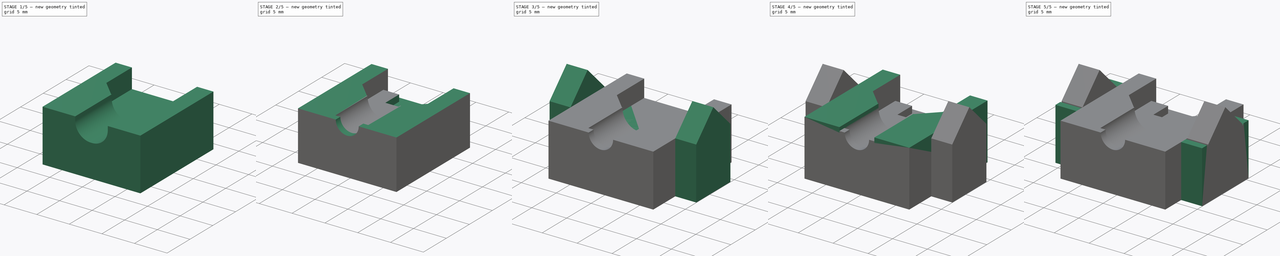
[diagram: build sequence overview — one tinted view per stage of 5, left to right]
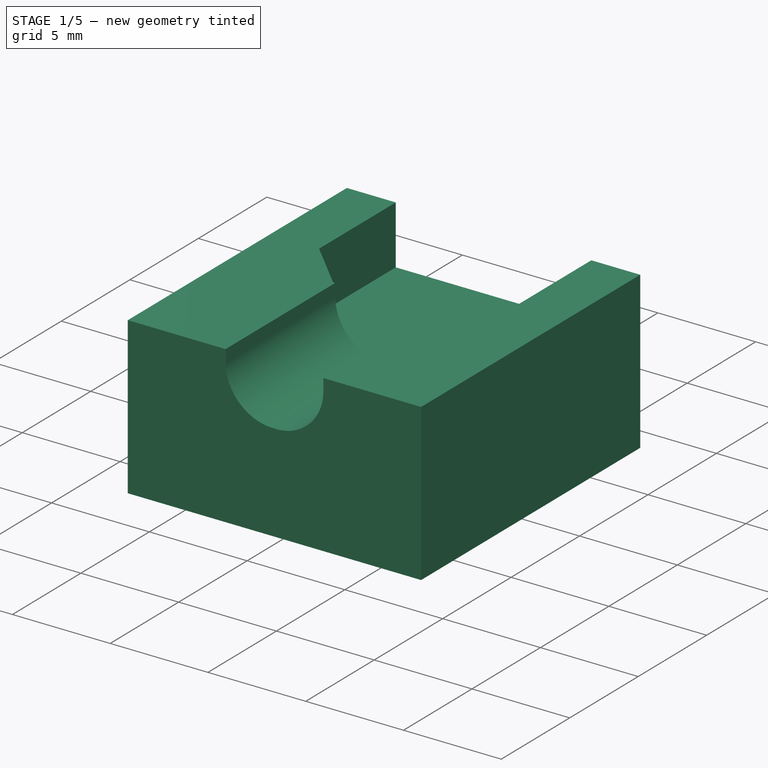
[diagram: stage 1 of 5 — iso view after this stage's code; geometry added in this stage tinted green]
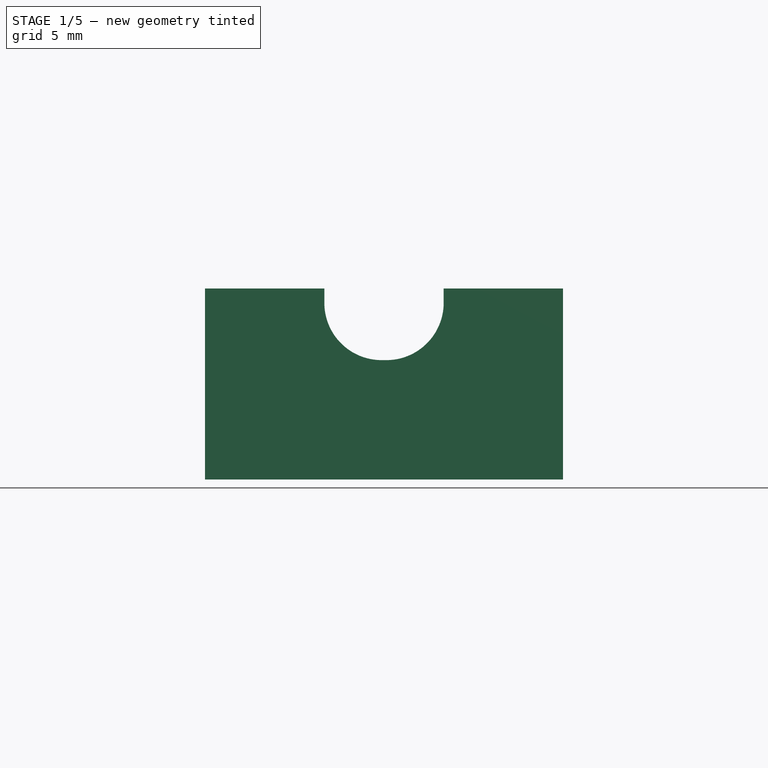
[diagram: stage 1 of 5 — front view after this stage's code; geometry added in this stage tinted green]
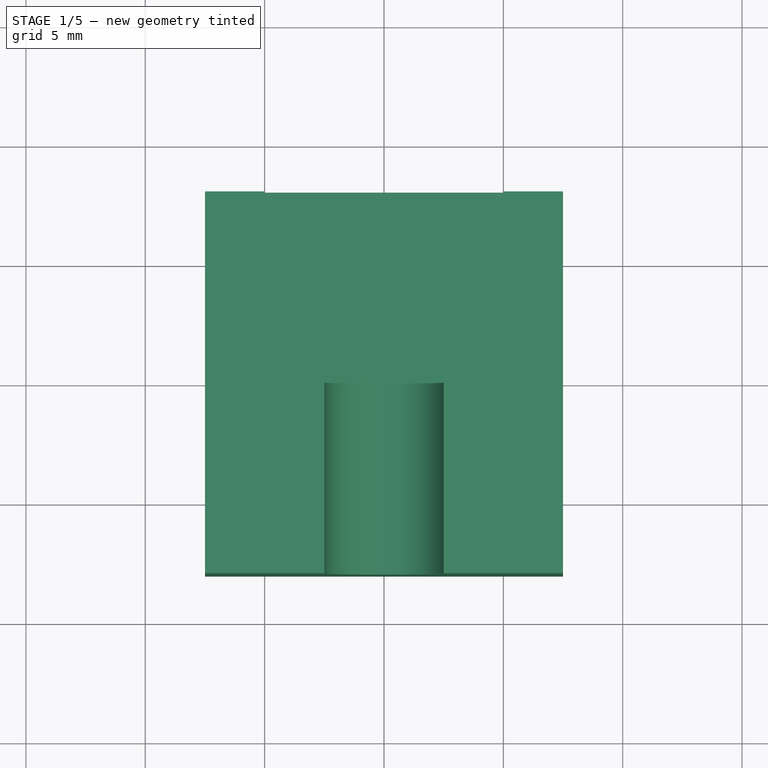
[diagram: stage 1 of 5 — top view after this stage's code; geometry added in this stage tinted green]
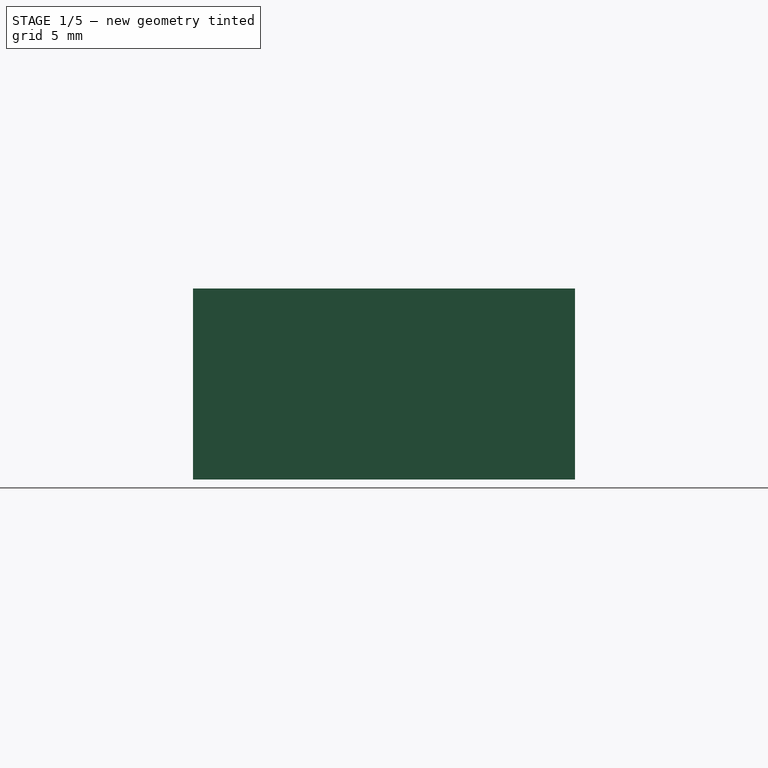
[diagram: stage 1 of 5 — right view after this stage's code; geometry added in this stage tinted green]
FCSTD DOCUMENT  (FreeCAD 1.0R39109 (Git))
Label: jst_gjutform
License: All rights reserved
LicenseURL: https://en.wikipedia.org/wiki/All_rights_reserved
objects: Sketcher::SketchObject×13, PartDesign::Pad×12, PartDesign::Pocket×4, PartDesign::Chamfer×2, PartDesign::Fillet×2, PartDesign::Body×2
note: 88 computed .brp shape members not serialized (recipe doc carries the construction recipe); baked Part::Feature solids carry a one-line shape summary decoded from their .brp

FEATURE [Sketcher::SketchObject] Sketch004
  ArcFitTolerance = 1e-06
  AttachmentSupport = -> [XY_Plane001]
  FullyConstrained = true
  MakeInternals = false
  MapMode = 5
  sketch-geometry (5):
    g0: LineSegment StartX=-7.5 StartY=-8 StartZ=0 EndX=7.5 EndY=-8 EndZ=0
    g1: LineSegment StartX=7.5 StartY=-8 StartZ=0 EndX=7.5 EndY=8 EndZ=0
    g2: LineSegment StartX=7.5 StartY=8 StartZ=0 EndX=-7.5 EndY=8 EndZ=0
    g3: LineSegment StartX=-7.5 StartY=8 StartZ=0 EndX=-7.5 EndY=-8 EndZ=0
    g4: GeomPoint [constr] X=0 Y=0 Z=0
  constraints (12):
    c: Coincident(g0,g1)
    c: Coincident(g1,g2)
    c: Coincident(g2,g3)
    c: Coincident(g3,g0)
    c: Horizontal(g0)
    c: Horizontal(g2)
    c: Vertical(g1)
    c: Vertical(g3)
    c: Symmetric(g2,g0,g4)
    c: Distance(g1,g3) = 15
    c: Distance(g0,g2) = 16
    c: Coincident(g4,g-1)
FEATURE [PartDesign::Pad] Pad003
  Direction = (0,0,1)
  Length = 5
  Length2 = 10
  Profile = -> Sketch004
  ReferenceAxis = -> Sketch004 [N_Axis]
  Refine = true
  Reversed = true
  Suppressed = false
  Type = 0
FEATURE [Sketcher::SketchObject] Sketch005
  ArcFitTolerance = 1e-06
  AttachmentSupport = -> [Pad003]
  FullyConstrained = true
  MakeInternals = false
  MapMode = 5
  sketch-geometry (13):
    g0: LineSegment StartX=-7.5 StartY=-8 StartZ=0 EndX=-2.5 EndY=-8 EndZ=0
    g1: LineSegment StartX=7.5 StartY=-8 StartZ=0 EndX=7.5 EndY=8 EndZ=0
    g2: LineSegment StartX=7.5 StartY=8 StartZ=0 EndX=5 EndY=8 EndZ=0
    g3: LineSegment StartX=-7.5 StartY=8 StartZ=0 EndX=-7.5 EndY=-8 EndZ=0
    g4: GeomPoint [constr] X=0 Y=0 Z=0
    g5: LineSegment StartX=-5 StartY=8 StartZ=0 EndX=-5 EndY=0 EndZ=0
    g6: LineSegment StartX=-5 StartY=0 StartZ=0 EndX=-2.5 EndY=0 EndZ=0
    g7: LineSegment StartX=5 StartY=0 StartZ=0 EndX=5 EndY=8 EndZ=0
    g8: LineSegment StartX=-5 StartY=8 StartZ=0 EndX=-7.5 EndY=8 EndZ=0
    g9: LineSegment StartX=-2.5 StartY=0 StartZ=0 EndX=-2.5 EndY=-8 EndZ=0
    g10: LineSegment StartX=2.5 StartY=-8 StartZ=0 EndX=2.5 EndY=0 EndZ=0
    g11: LineSegment StartX=2.5 StartY=0 StartZ=0 EndX=5 EndY=0 EndZ=0
    g12: LineSegment StartX=2.5 StartY=-8 StartZ=0 EndX=7.5 EndY=-8 EndZ=0
  constraints (38):
    c: Coincident(g12,g1)
    c: Coincident(g1,g2)
    c: Coincident(g8,g3)
    c: Coincident(g3,g0)
    c: Horizontal(g0)
    c: Horizontal(g2)
    c: Vertical(g1)
    c: Vertical(g3)
    c: Symmetric(g2,g0,g4)
    c: Distance(g1,g3) = 15
    c: Distance(g0,g8) = 16
    c: Coincident(g4,g-1)
    c: Coincident(g5,g6)
    c: Coincident(g11,g7)
    c: Vertical(g5)
    c: Vertical(g7)
    c: Horizontal(g6)
    c: Distance(g5,g7) = 10
    c: Distance(g6,g5) = 8
    c: PointOnObject(g5,g8)
    c: PointOnObject(g8,g5)
    c: DistanceX(g8,g8) = 2.5
    c: DistanceY(g-1,g3) = 8
    c: Horizontal(g8)
    c: Coincident(g7,g2)
    c: Vertical(g9)
    c: Vertical(g10)
    c: Distance(g9,g10) = 5
    c: Distance(g9,g9) = 8
    c: DistanceX(g9,g-1) = 2.5
    c: Coincident(g6,g9)
    c: PointOnObject(g0,g9)
    c: Horizontal(g11)
    c: Coincident(g10,g11)
    c: PointOnObject(g7,g-1)
    c: Coincident(g10,g12)
    c: Horizontal(g12)
    c: DistanceY(g1,g-1) = 8
FEATURE [PartDesign::Pad] Pad004
  BaseFeature = -> Pad003
  Direction = (0,0,1)
  Length = 3
  Length2 = 10
  Profile = -> Sketch005
  ReferenceAxis = -> Sketch005 [N_Axis]
  Refine = true
  Suppressed = false
  Type = 0
FEATURE [PartDesign::Chamfer] Chamfer001
  Angle = 45
  Base = -> Pad004 [Edge27,Edge25]
  BaseFeature = -> Pad004
  ChamferType = 0
  FlipDirection = false
  Refine = true
  Size = 2.4
  Size2 = 1
  SupportTransform = false
  Suppressed = false
  UseAllEdges = false
FEATURE [PartDesign::Fillet] Fillet001
  Base = -> Chamfer001 [Edge7,Edge3]
  BaseFeature = -> Chamfer001
  Radius = 2.4
  Refine = true
  SupportTransform = false
  Suppressed = false
  UseAllEdges = false
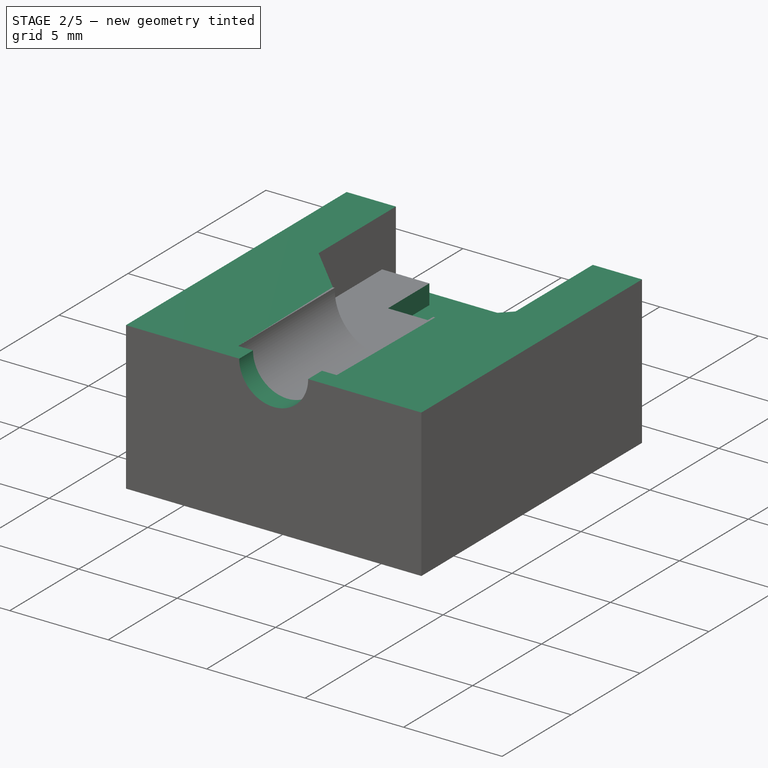
[diagram: stage 2 of 5 — iso view after this stage's code; geometry added in this stage tinted green]
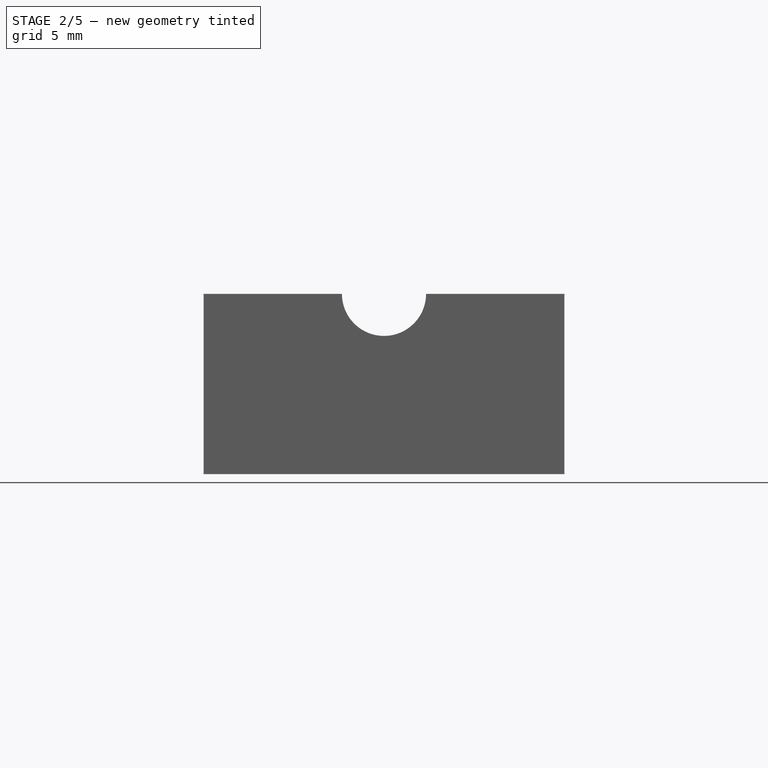
[diagram: stage 2 of 5 — front view after this stage's code; geometry added in this stage tinted green]
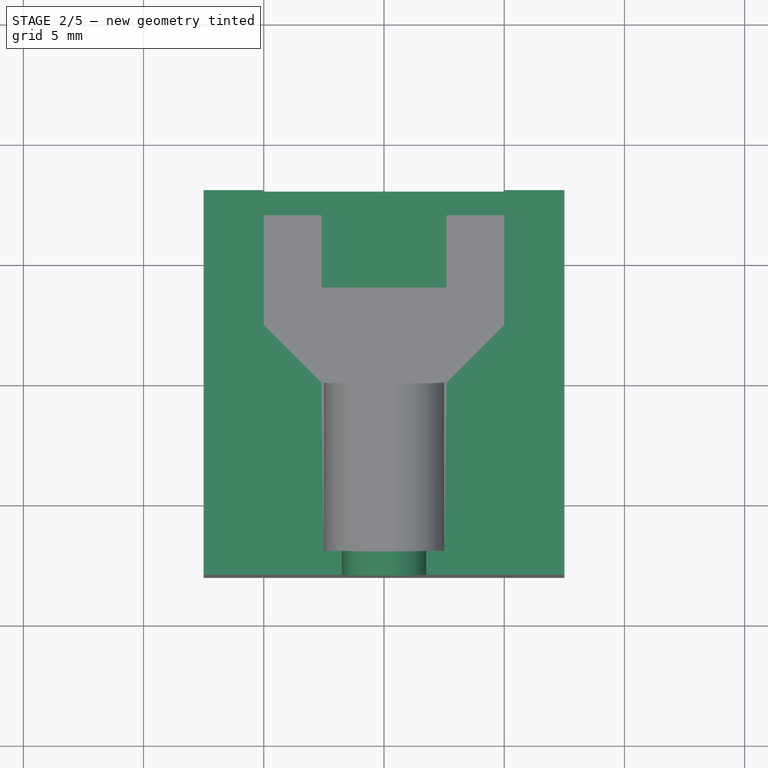
[diagram: stage 2 of 5 — top view after this stage's code; geometry added in this stage tinted green]
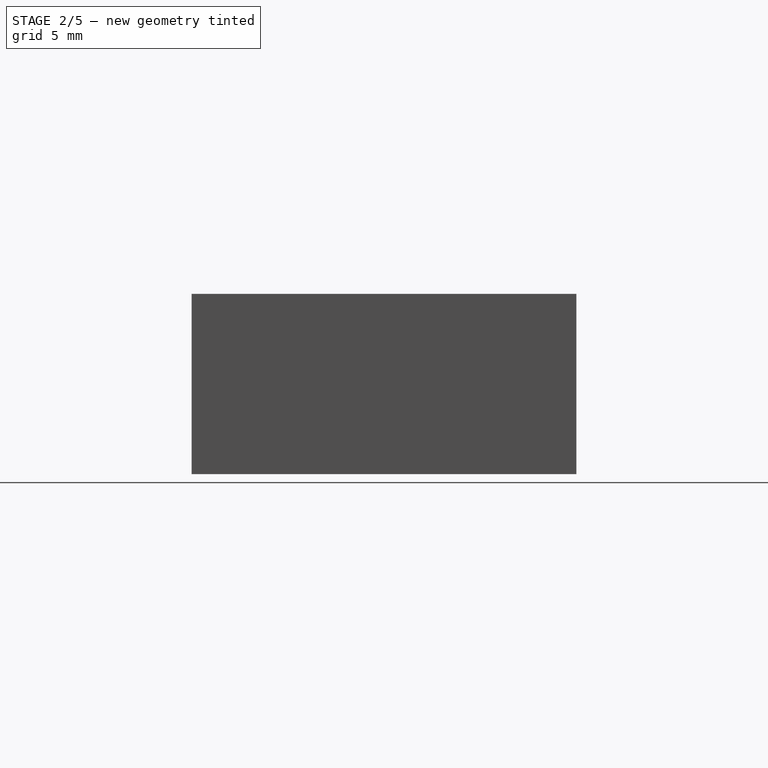
[diagram: stage 2 of 5 — right view after this stage's code; geometry added in this stage tinted green]
FEATURE [Sketcher::SketchObject] Sketch006
  ArcFitTolerance = 1e-06
  AttachmentSupport = -> [Fillet001]
  FullyConstrained = true
  MakeInternals = false
  MapMode = 5
  sketch-geometry (5):
    g0: LineSegment StartX=-5 StartY=4 StartZ=0 EndX=5 EndY=4 EndZ=0
    g1: LineSegment StartX=5 StartY=4 StartZ=0 EndX=5 EndY=8 EndZ=0
    g2: LineSegment StartX=5 StartY=8 StartZ=0 EndX=-5 EndY=8 EndZ=0
    g3: LineSegment StartX=-5 StartY=8 StartZ=0 EndX=-5 EndY=4 EndZ=0
    g4: GeomPoint [constr] X=0 Y=6 Z=0
  constraints (13):
    c: Coincident(g0,g1)
    c: Coincident(g1,g2)
    c: Coincident(g2,g3)
    c: Coincident(g3,g0)
    c: Horizontal(g0)
    c: Horizontal(g2)
    c: Vertical(g1)
    c: Vertical(g3)
    c: Symmetric(g2,g0,g4)
    c: Distance(g1,g3) = 10
    c: Distance(g0,g2) = 4
    c: PointOnObject(g4,g-2)
    c: DistanceY(g-1,g2) = 8
FEATURE [PartDesign::Pocket] Pocket003
  BaseFeature = -> Fillet001
  Direction = (0,0,-1)
  Length = 1
  Length2 = 5
  Profile = -> Sketch006
  ReferenceAxis = -> Sketch006 [N_Axis]
  Refine = true
  Suppressed = false
  Type = 0
FEATURE [PartDesign::Pocket] Pocket004
  BaseFeature = -> Pocket003
  Direction = (0,0,-1)
  Length = 0.5
  Length2 = 5
  Profile = -> Pocket003 [Face11,Face14]
  Refine = true
  Suppressed = false
  Type = 0
FEATURE [Sketcher::SketchObject] Sketch007
  ArcFitTolerance = 1e-06
  AttachmentSupport = -> [Pocket004]
  FullyConstrained = true
  MakeInternals = false
  MapMode = 5
  Placement = pos=(0,-8,0) rot=(1,0,0;1.5708rad)
  sketch-geometry (7):
    g0: ArcOfCircle CenterX=0 CenterY=2.5 CenterZ=0 NormalX=0 NormalY=0 NormalZ=1 AngleXU=0 Radius=1.75 StartAngle=3.14159 EndAngle=6.28319
    g1: LineSegment StartX=-2.5 StartY=-0.5 StartZ=0 EndX=2.5 EndY=-0.5 EndZ=0
    g2: LineSegment StartX=2.5 StartY=-0.5 StartZ=0 EndX=2.5 EndY=2.5 EndZ=0
    g3: LineSegment StartX=2.5 StartY=2.5 StartZ=0 EndX=1.75 EndY=2.5 EndZ=0
    g4: LineSegment StartX=-2.5 StartY=2.5 StartZ=0 EndX=-2.5 EndY=-0.5 EndZ=0
    g5: GeomPoint [constr] X=0 Y=1 Z=0
    g6: LineSegment StartX=-1.75 StartY=2.5 StartZ=0 EndX=-2.5 EndY=2.5 EndZ=0
  constraints (21):
    c: Diameter(g0) = 3.5
    c: PointOnObject(g0,g-2)
    c: Coincident(g1,g2)
    c: Coincident(g2,g3)
    c: Coincident(g6,g4)
    c: Coincident(g4,g1)
    c: Horizontal(g1)
    c: Horizontal(g3)
    c: Vertical(g2)
    c: Vertical(g4)
    c: Symmetric(g3,g1,g5)
    c: Distance(g2,g4) = 5
    c: Distance(g1,g6) = 3
    c: PointOnObject(g5,g-2)
    c: DistanceY(g-1,g6) = 2.5
    c: DistanceY(g-1,g0) = 2.5
    c: PointOnObject(g0,g6)
    c: Coincident(g3,g0)
    c: PointOnObject(g6,g0)
    c: Angle(g0) = 3.14159
    c: DistanceY(g-1,g0) = 2.5
FEATURE [PartDesign::Pad] Pad005
  BaseFeature = -> Pocket004
  Direction = (0,-1,2e-16)
  Length = 1
  Length2 = 10
  Profile = -> Sketch007
  ReferenceAxis = -> Sketch007 [N_Axis]
  Refine = true
  Reversed = true
  Suppressed = false
  Type = 0
FEATURE [Sketcher::SketchObject] Sketch008
  ArcFitTolerance = 1e-06
  AttachmentSupport = -> [Pad005]
  FullyConstrained = true
  MakeInternals = false
  MapMode = 5
  Placement = pos=(0,4,0) rot=(0,0.707107,0.707107;3.14159rad)
  sketch-geometry (8):
    g0: LineSegment StartX=-2.6 StartY=0 StartZ=0 EndX=-5 EndY=0 EndZ=0
    g1: LineSegment StartX=-5 StartY=0 StartZ=0 EndX=-5 EndY=-1 EndZ=0
    g2: LineSegment StartX=-5 StartY=-1 StartZ=0 EndX=-2.6 EndY=-1 EndZ=0
    g3: LineSegment StartX=-2.6 StartY=-1 StartZ=0 EndX=-2.6 EndY=0 EndZ=0
    g4: LineSegment StartX=2.6 StartY=0 StartZ=0 EndX=2.6 EndY=-1 EndZ=0
    g5: LineSegment StartX=2.6 StartY=-1 StartZ=0 EndX=5 EndY=-1 EndZ=0
    g6: LineSegment StartX=5 StartY=-1 StartZ=0 EndX=5 EndY=0 EndZ=0
    g7: LineSegment StartX=5 StartY=0 StartZ=0 EndX=2.6 EndY=0 EndZ=0
  constraints (24):
    c: Coincident(g0,g1)
    c: Coincident(g1,g2)
    c: Coincident(g2,g3)
    c: Coincident(g3,g0)
    c: Horizontal(g0)
    c: Horizontal(g2)
    c: Vertical(g1)
    c: Vertical(g3)
    c: PointOnObject(g0,g-1)
    c: Coincident(g4,g5)
    c: Coincident(g5,g6)
    c: Coincident(g6,g7)
    c: Coincident(g7,g4)
    c: Vertical(g4)
    c: Vertical(g6)
    c: Horizontal(g5)
    c: Horizontal(g7)
    c: PointOnObject(g4,g-1)
    c: DistanceX(g0,g-1) = 2.6
    c: DistanceX(g-1,g4) = 2.6
    c: DistanceX(g0,g-1) = 5
    c: DistanceX(g-1,g6) = 5
    c: DistanceY(g4,g-1) = 1
    c: DistanceY(g2,g-1) = 1
FEATURE [PartDesign::Pad] Pad006
  BaseFeature = -> Pad005
  Direction = (0,1,-2e-16)
  Length = 3
  Length2 = 10
  Profile = -> Sketch008
  ReferenceAxis = -> Sketch008 [N_Axis]
  Refine = true
  Suppressed = false
  Type = 0
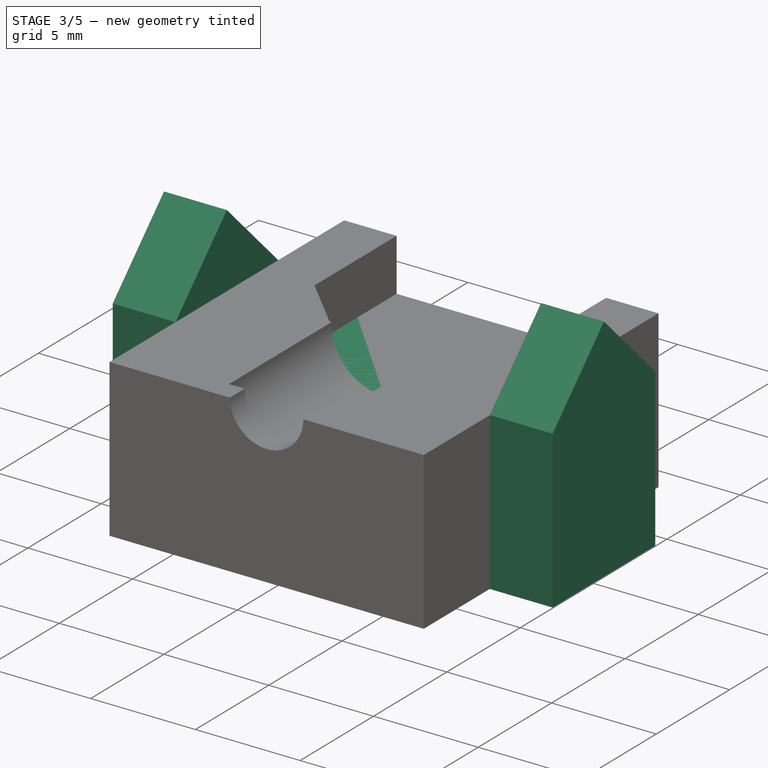
[diagram: stage 3 of 5 — iso view after this stage's code; geometry added in this stage tinted green]
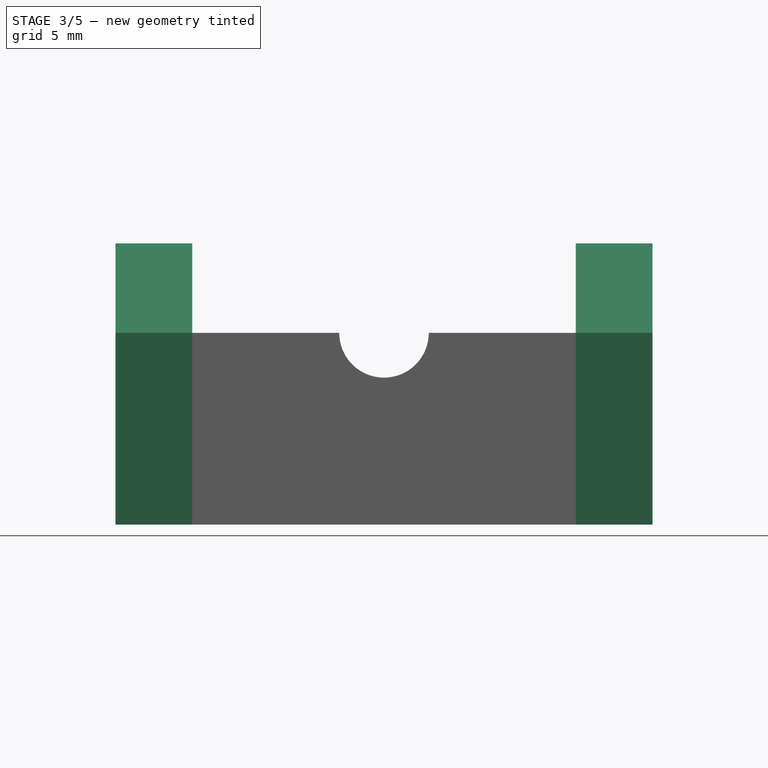
[diagram: stage 3 of 5 — front view after this stage's code; geometry added in this stage tinted green]
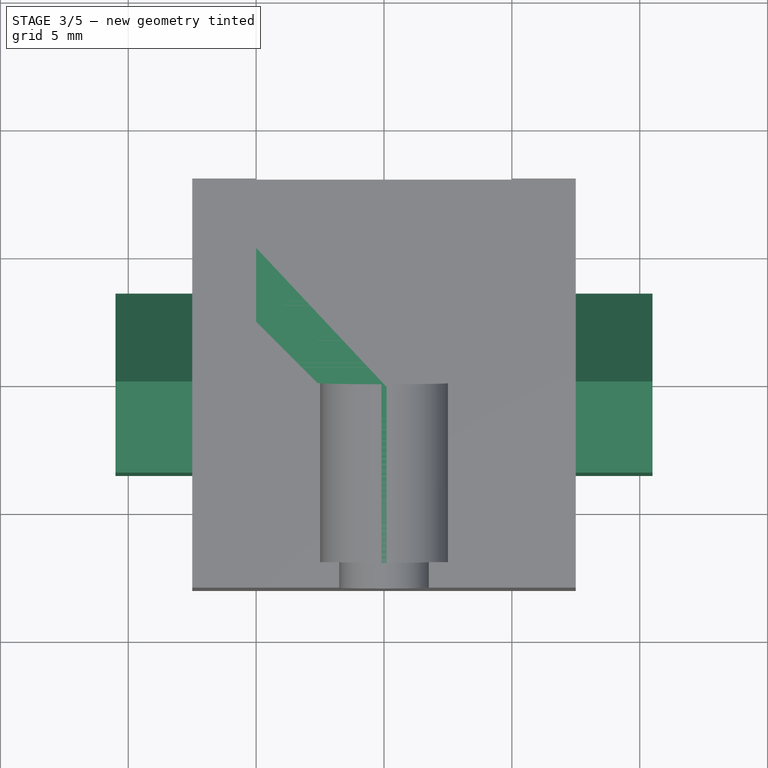
[diagram: stage 3 of 5 — top view after this stage's code; geometry added in this stage tinted green]
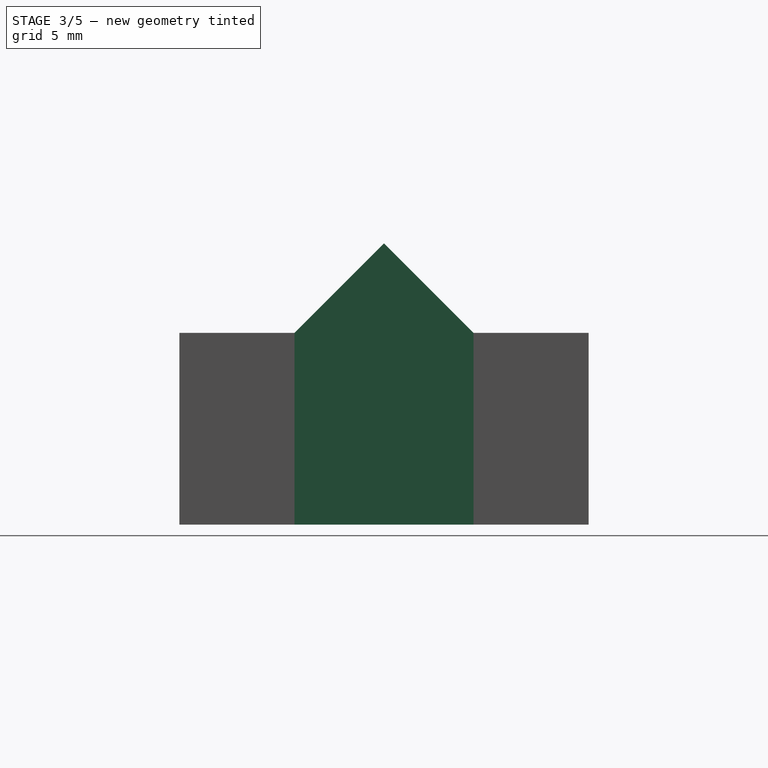
[diagram: stage 3 of 5 — right view after this stage's code; geometry added in this stage tinted green]
FEATURE [Sketcher::SketchObject] Sketch
  ArcFitTolerance = 1e-06
  AttachmentSupport = -> [XY_Plane]
  FullyConstrained = true
  MakeInternals = false
  MapMode = 5
  sketch-geometry (5):
    g0: LineSegment StartX=-7.5 StartY=-8 StartZ=0 EndX=7.5 EndY=-8 EndZ=0
    g1: LineSegment StartX=7.5 StartY=-8 StartZ=0 EndX=7.5 EndY=8 EndZ=0
    g2: LineSegment StartX=7.5 StartY=8 StartZ=0 EndX=-7.5 EndY=8 EndZ=0
    g3: LineSegment StartX=-7.5 StartY=8 StartZ=0 EndX=-7.5 EndY=-8 EndZ=0
    g4: GeomPoint [constr] X=0 Y=0 Z=0
  constraints (12):
    c: Coincident(g0,g1)
    c: Coincident(g1,g2)
    c: Coincident(g2,g3)
    c: Coincident(g3,g0)
    c: Horizontal(g0)
    c: Horizontal(g2)
    c: Vertical(g1)
    c: Vertical(g3)
    c: Symmetric(g2,g0,g4)
    c: Distance(g1,g3) = 15
    c: Distance(g0,g2) = 16
    c: Coincident(g4,g-1)
FEATURE [PartDesign::Pad] Pad
  Direction = (0,0,1)
  Length = 5
  Length2 = 10
  Profile = -> Sketch
  ReferenceAxis = -> Sketch [N_Axis]
  Refine = true
  Reversed = true
  Suppressed = false
  Type = 0
FEATURE [Sketcher::SketchObject] Sketch009
  ArcFitTolerance = 1e-06
  AttachmentSupport = -> [Pad006]
  FullyConstrained = true
  MakeInternals = false
  MapMode = 5
  Placement = pos=(7.5,0,0) rot=(0.57735,0.57735,0.57735;2.0944rad)
  sketch-geometry (5):
    g0: LineSegment StartX=-3.5 StartY=2.5 StartZ=0 EndX=4e-16 EndY=6 EndZ=0
    g1: LineSegment StartX=4e-16 StartY=6 StartZ=0 EndX=3.5 EndY=2.5 EndZ=0
    g2: LineSegment StartX=3.5 StartY=2.5 StartZ=0 EndX=3.5 EndY=0 EndZ=0
    g3: LineSegment StartX=3.5 StartY=0 StartZ=0 EndX=-3.5 EndY=0 EndZ=0
    g4: LineSegment StartX=-3.5 StartY=0 StartZ=0 EndX=-3.5 EndY=2.5 EndZ=0
  constraints (15):
    c: PointOnObject(g0,g-2)
    c: Coincident(g1,g0)
    c: Coincident(g2,g1)
    c: PointOnObject(g2,g-1)
    c: Vertical(g2)
    c: Coincident(g3,g2)
    c: PointOnObject(g3,g-1)
    c: Coincident(g4,g3)
    c: Coincident(g4,g0)
    c: Vertical(g4)
    c: Angle(g0,g-2) = 0.785398
    c: Angle(g-2,g1) = 0.785398
    c: DistanceY(g-1,g0) = 2.5
    c: DistanceX(g3,g3) = 7
    c: DistanceX(g-1,g2) = 3.5
FEATURE [PartDesign::Pad] Pad007
  BaseFeature = -> Pad006
  Direction = (1,0,0)
  Length = 3
  Length2 = 10
  Profile = -> Sketch009
  ReferenceAxis = -> Sketch009 [N_Axis]
  Refine = true
  Suppressed = false
  Type = 0
FEATURE [Sketcher::SketchObject] Sketch010
  ArcFitTolerance = 1e-06
  AttachmentSupport = -> [Pad007]
  FullyConstrained = true
  MakeInternals = false
  MapMode = 5
  Placement = pos=(-7.5,0,0) rot=(0.57735,-0.57735,-0.57735;2.0944rad)
  sketch-geometry (5):
    g0: LineSegment StartX=-3.5 StartY=2.5 StartZ=0 EndX=0 EndY=6 EndZ=0
    g1: LineSegment StartX=0 StartY=6 StartZ=0 EndX=3.5 EndY=2.5 EndZ=0
    g2: LineSegment StartX=3.5 StartY=2.5 StartZ=0 EndX=3.5 EndY=0 EndZ=0
    g3: LineSegment StartX=3.5 StartY=0 StartZ=0 EndX=-3.5 EndY=0 EndZ=0
    g4: LineSegment StartX=-3.5 StartY=0 StartZ=0 EndX=-3.5 EndY=2.5 EndZ=0
  constraints (15):
    c: PointOnObject(g0,g-2)
    c: Coincident(g1,g0)
    c: Coincident(g2,g1)
    c: PointOnObject(g2,g-1)
    c: Vertical(g2)
    c: Coincident(g3,g2)
    c: PointOnObject(g3,g-1)
    c: Coincident(g4,g3)
    c: Coincident(g4,g0)
    c: Vertical(g4)
    c: Angle(g0,g-2) = 0.785398
    c: Angle(g-2,g1) = 0.785398
    c: DistanceY(g-1,g0) = 2.5
    c: DistanceX(g3,g3) = 7
    c: DistanceX(g-1,g2) = 3.5
FEATURE [PartDesign::Pad] Pad008
  BaseFeature = -> Pad007
  Direction = (-1,0,0)
  Length = 3
  Length2 = 10
  Profile = -> Sketch010
  ReferenceAxis = -> Sketch010 [N_Axis]
  Refine = true
  Suppressed = false
  Type = 0
FEATURE [PartDesign::Body] Body
  AllowCompound = false
  Group = -> [Sketch,Pad,Sketch001,Pad001,Chamfer,Fillet,Sketch002,Pocket,Pocket002,Sketch003,Pad002,Sketch011,Pad009,Sketch012,Pad010]
  Origin = -> Origin
  Tip = -> Pad010
FEATURE [PartDesign::Pad] Pad011
  BaseFeature = -> Pad008
  Direction = (0,0,-1)
  Length = 5
  Length2 = 10
  Profile = -> Pad008 [Face30,Face33]
  Refine = true
  Suppressed = false
  Type = 0
FEATURE [PartDesign::Body] Body001
  AllowCompound = false
  Group = -> [Sketch004,Pad003,Sketch005,Pad004,Chamfer001,Fillet001,Sketch006,Pocket003,Pocket004,Sketch007,Pad005,Sketch008,Pad006,Sketch009,Pad007,Sketch010,Pad008,Pad011]
  Origin = -> Origin001
  Placement = pos=(-6e-16,0,5) rot=(0,1,0;3.14159rad)
  Tip = -> Pad011
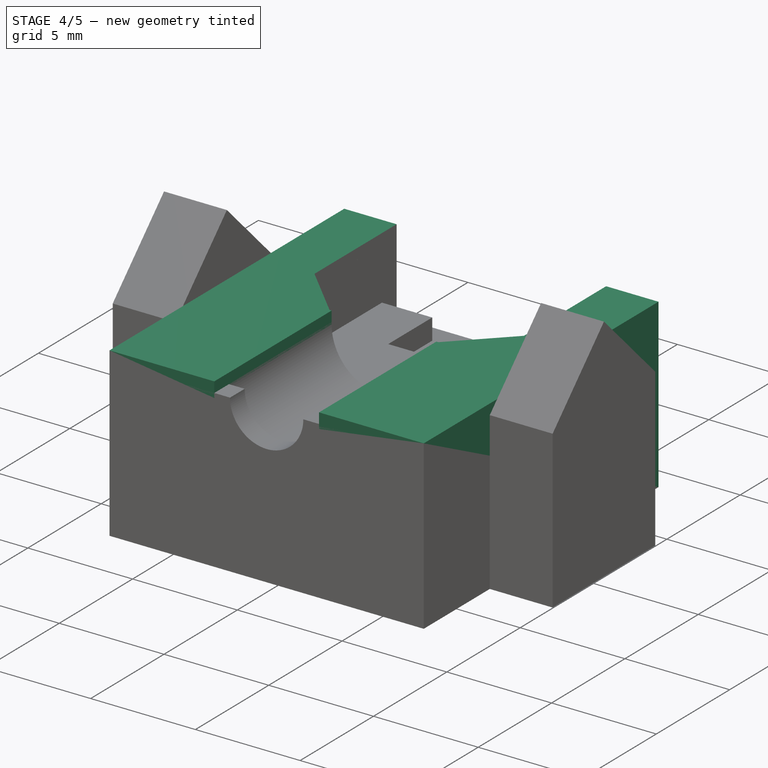
[diagram: stage 4 of 5 — iso view after this stage's code; geometry added in this stage tinted green]
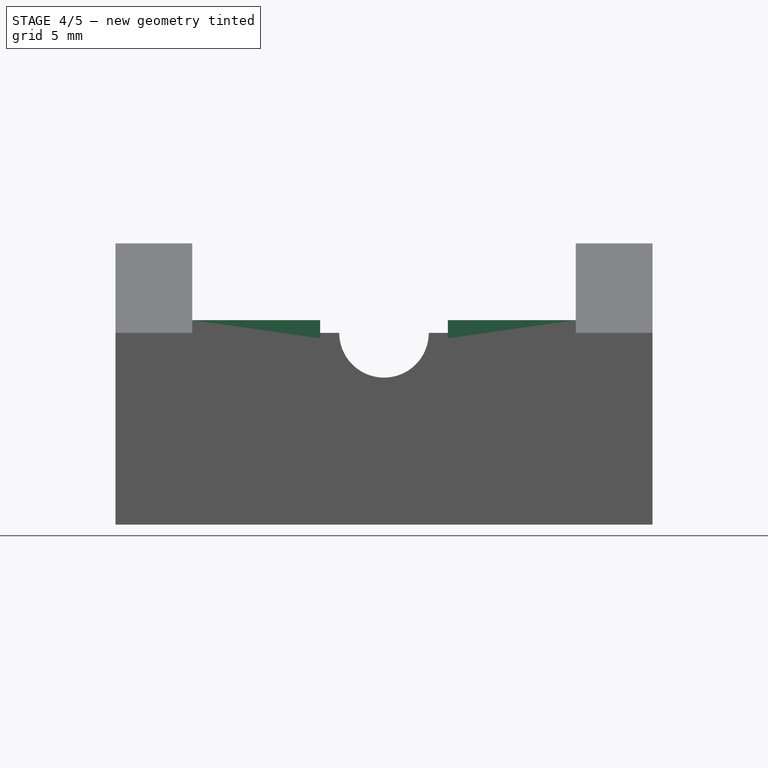
[diagram: stage 4 of 5 — front view after this stage's code; geometry added in this stage tinted green]
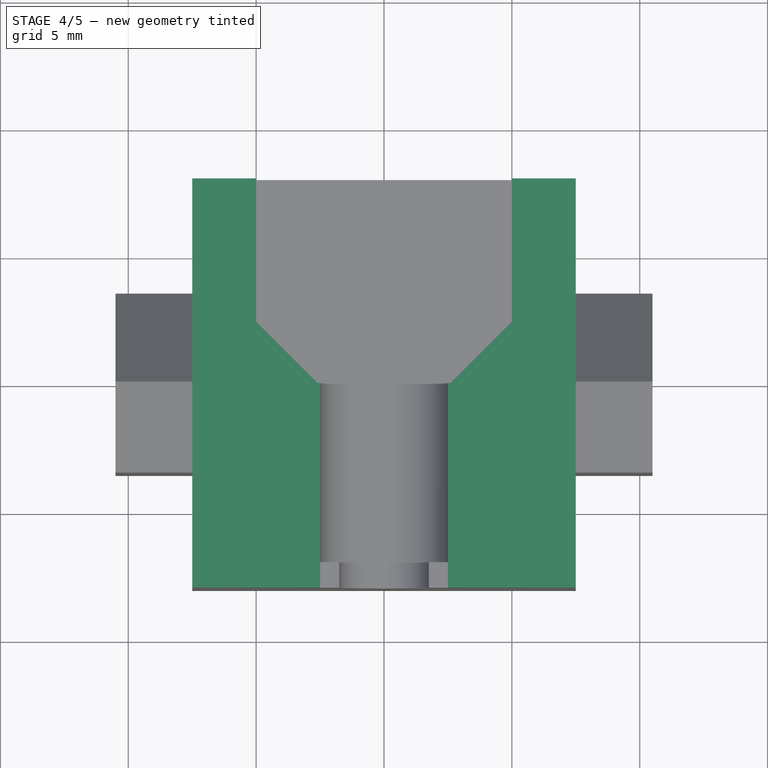
[diagram: stage 4 of 5 — top view after this stage's code; geometry added in this stage tinted green]
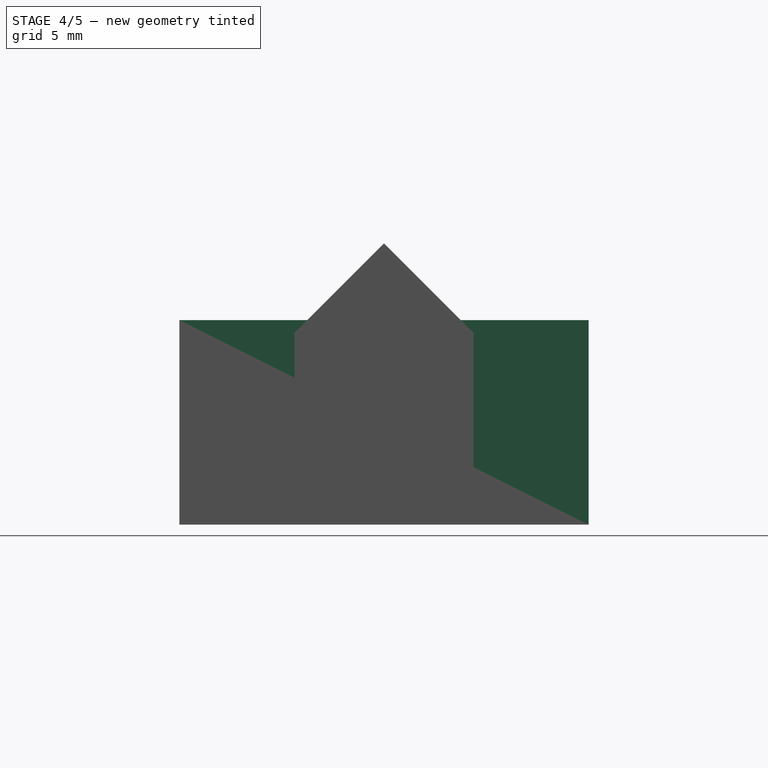
[diagram: stage 4 of 5 — right view after this stage's code; geometry added in this stage tinted green]
FEATURE [Sketcher::SketchObject] Sketch001
  ArcFitTolerance = 1e-06
  AttachmentSupport = -> [Pad]
  FullyConstrained = true
  MakeInternals = false
  MapMode = 5
  sketch-geometry (13):
    g0: LineSegment StartX=-7.5 StartY=-8 StartZ=0 EndX=-2.5 EndY=-8 EndZ=0
    g1: LineSegment StartX=7.5 StartY=-8 StartZ=0 EndX=7.5 EndY=8 EndZ=0
    g2: LineSegment StartX=7.5 StartY=8 StartZ=0 EndX=5 EndY=8 EndZ=0
    g3: LineSegment StartX=-7.5 StartY=8 StartZ=0 EndX=-7.5 EndY=-8 EndZ=0
    g4: GeomPoint [constr] X=0 Y=0 Z=0
    g5: LineSegment StartX=-5 StartY=8 StartZ=0 EndX=-5 EndY=0 EndZ=0
    g6: LineSegment StartX=-5 StartY=0 StartZ=0 EndX=-2.5 EndY=0 EndZ=0
    g7: LineSegment StartX=5 StartY=0 StartZ=0 EndX=5 EndY=8 EndZ=0
    g8: LineSegment StartX=-5 StartY=8 StartZ=0 EndX=-7.5 EndY=8 EndZ=0
    g9: LineSegment StartX=-2.5 StartY=0 StartZ=0 EndX=-2.5 EndY=-8 EndZ=0
    g10: LineSegment StartX=2.5 StartY=-8 StartZ=0 EndX=2.5 EndY=0 EndZ=0
    g11: LineSegment StartX=2.5 StartY=0 StartZ=0 EndX=5 EndY=0 EndZ=0
    g12: LineSegment StartX=2.5 StartY=-8 StartZ=0 EndX=7.5 EndY=-8 EndZ=0
  constraints (38):
    c: Coincident(g12,g1)
    c: Coincident(g1,g2)
    c: Coincident(g8,g3)
    c: Coincident(g3,g0)
    c: Horizontal(g0)
    c: Horizontal(g2)
    c: Vertical(g1)
    c: Vertical(g3)
    c: Symmetric(g2,g0,g4)
    c: Distance(g1,g3) = 15
    c: Distance(g0,g8) = 16
    c: Coincident(g4,g-1)
    c: Coincident(g5,g6)
    c: Coincident(g11,g7)
    c: Vertical(g5)
    c: Vertical(g7)
    c: Horizontal(g6)
    c: Distance(g5,g7) = 10
    c: Distance(g6,g5) = 8
    c: PointOnObject(g5,g8)
    c: PointOnObject(g8,g5)
    c: DistanceX(g8,g8) = 2.5
    c: DistanceY(g-1,g3) = 8
    c: Horizontal(g8)
    c: Coincident(g7,g2)
    c: Vertical(g9)
    c: Vertical(g10)
    c: Distance(g9,g10) = 5
    c: Distance(g9,g9) = 8
    c: DistanceX(g9,g-1) = 2.5
    c: Coincident(g6,g9)
    c: PointOnObject(g0,g9)
    c: Horizontal(g11)
    c: Coincident(g10,g11)
    c: PointOnObject(g7,g-1)
    c: Coincident(g10,g12)
    c: Horizontal(g12)
    c: DistanceY(g1,g-1) = 8
FEATURE [PartDesign::Pad] Pad001
  BaseFeature = -> Pad
  Direction = (0,0,1)
  Length = 3
  Length2 = 10
  Profile = -> Sketch001
  ReferenceAxis = -> Sketch001 [N_Axis]
  Refine = true
  Suppressed = false
  Type = 0
FEATURE [PartDesign::Chamfer] Chamfer
  Angle = 45
  Base = -> Pad001 [Edge27,Edge25]
  BaseFeature = -> Pad001
  ChamferType = 0
  FlipDirection = false
  Refine = true
  Size = 2.4
  Size2 = 1
  SupportTransform = false
  Suppressed = false
  UseAllEdges = false
FEATURE [PartDesign::Fillet] Fillet
  Base = -> Chamfer [Edge7,Edge3]
  BaseFeature = -> Chamfer
  Radius = 2.4
  Refine = true
  SupportTransform = false
  Suppressed = false
  UseAllEdges = false
FEATURE [Sketcher::SketchObject] Sketch002
  ArcFitTolerance = 1e-06
  AttachmentSupport = -> [Fillet]
  FullyConstrained = true
  MakeInternals = false
  MapMode = 5
  sketch-geometry (5):
    g0: LineSegment StartX=-5 StartY=4 StartZ=0 EndX=5 EndY=4 EndZ=0
    g1: LineSegment StartX=5 StartY=4 StartZ=0 EndX=5 EndY=8 EndZ=0
    g2: LineSegment StartX=5 StartY=8 StartZ=0 EndX=-5 EndY=8 EndZ=0
    g3: LineSegment StartX=-5 StartY=8 StartZ=0 EndX=-5 EndY=4 EndZ=0
    g4: GeomPoint [constr] X=0 Y=6 Z=0
  constraints (13):
    c: Coincident(g0,g1)
    c: Coincident(g1,g2)
    c: Coincident(g2,g3)
    c: Coincident(g3,g0)
    c: Horizontal(g0)
    c: Horizontal(g2)
    c: Vertical(g1)
    c: Vertical(g3)
    c: Symmetric(g2,g0,g4)
    c: Distance(g1,g3) = 10
    c: Distance(g0,g2) = 4
    c: PointOnObject(g4,g-2)
    c: DistanceY(g-1,g2) = 8
FEATURE [PartDesign::Pocket] Pocket
  BaseFeature = -> Fillet
  Direction = (0,0,-1)
  Length = 1
  Length2 = 5
  Profile = -> Sketch002
  ReferenceAxis = -> Sketch002 [N_Axis]
  Refine = true
  Suppressed = false
  Type = 0
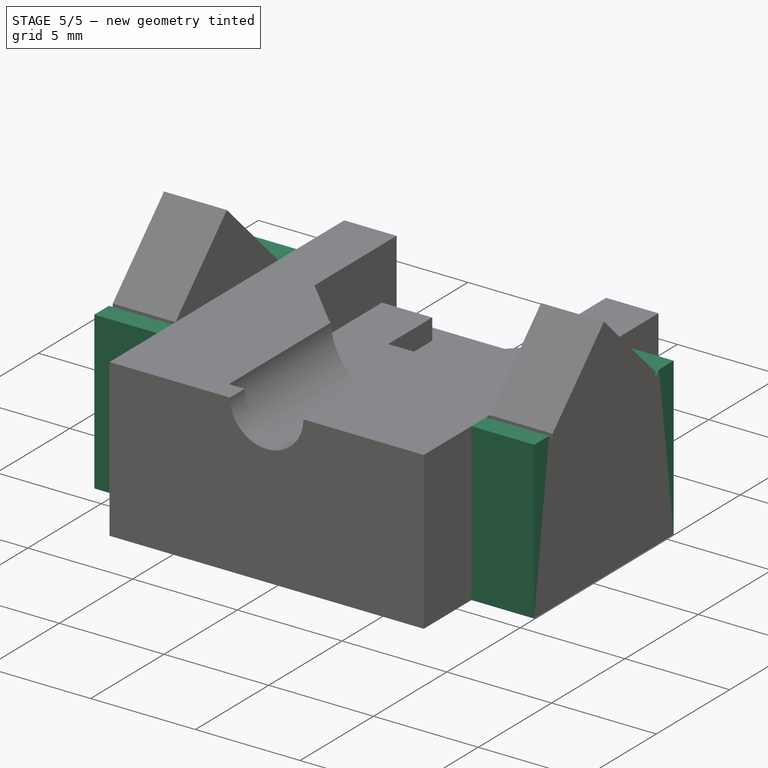
[diagram: stage 5 of 5 — iso view after this stage's code; geometry added in this stage tinted green]
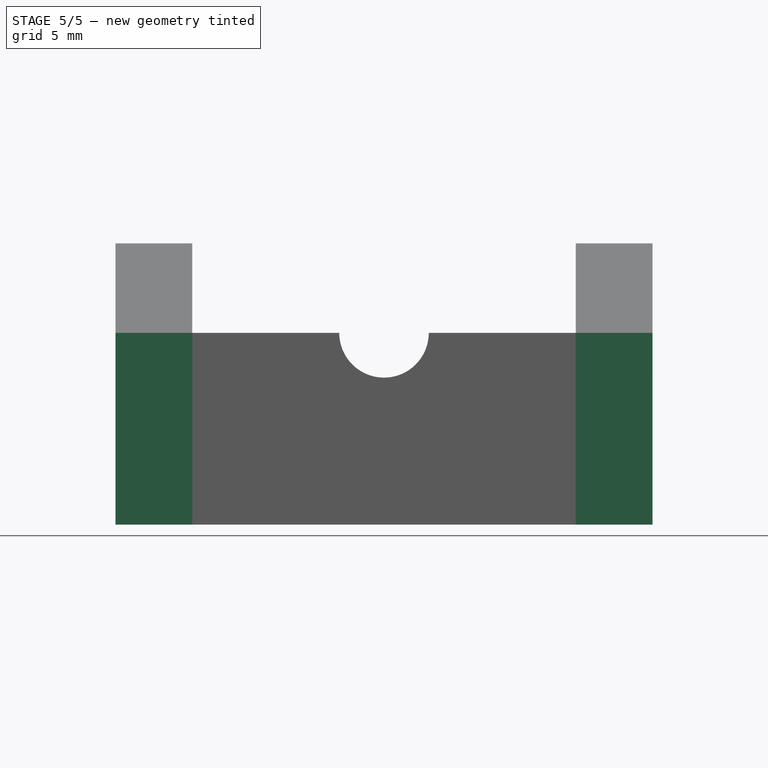
[diagram: stage 5 of 5 — front view after this stage's code; geometry added in this stage tinted green]
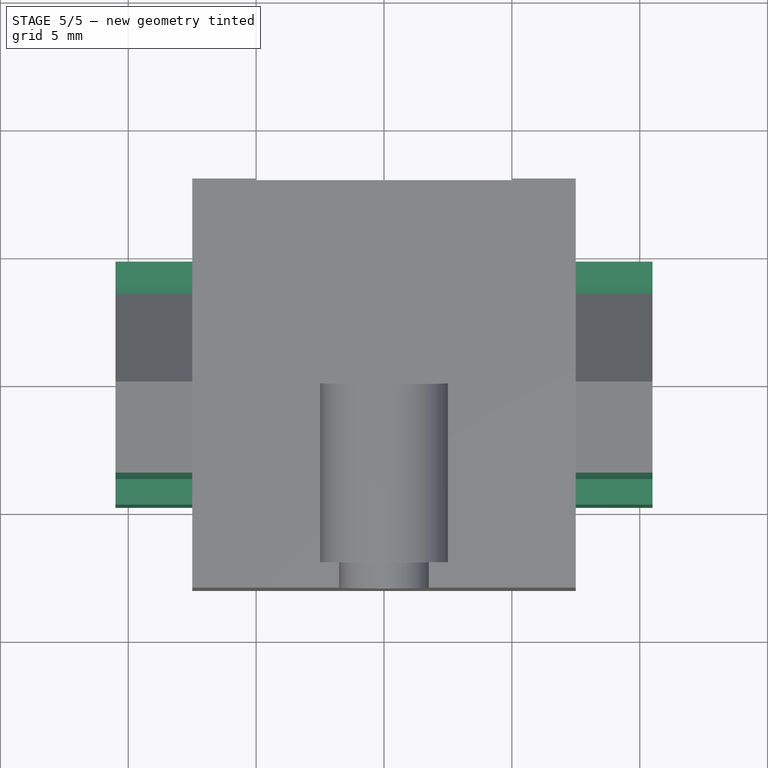
[diagram: stage 5 of 5 — top view after this stage's code; geometry added in this stage tinted green]
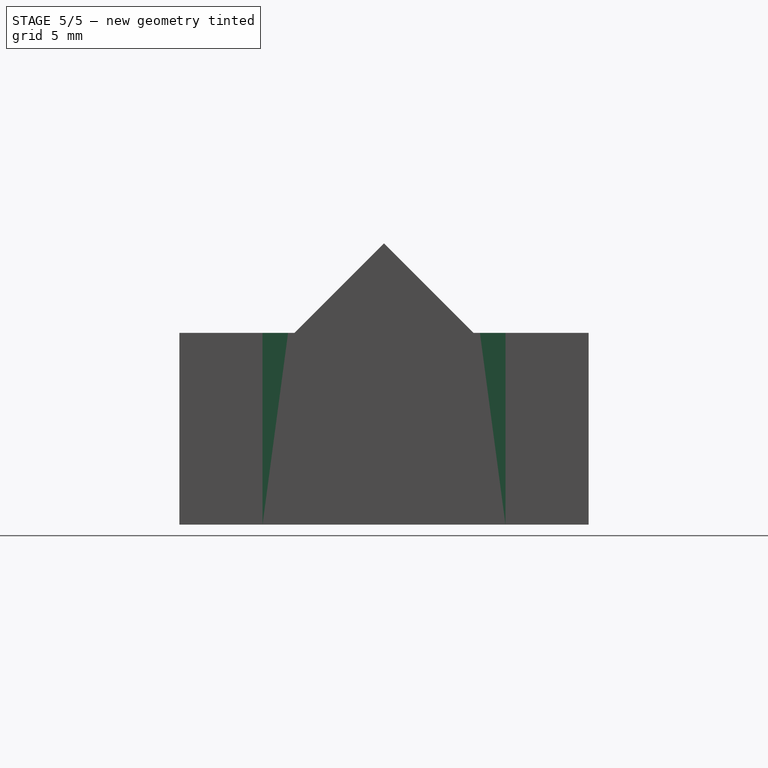
[diagram: stage 5 of 5 — right view after this stage's code; geometry added in this stage tinted green]
FEATURE [PartDesign::Pocket] Pocket002
  BaseFeature = -> Pocket
  Direction = (0,0,-1)
  Length = 0.5
  Length2 = 5
  Profile = -> Pocket [Face11,Face14]
  Refine = true
  Suppressed = false
  Type = 0
FEATURE [Sketcher::SketchObject] Sketch003
  ArcFitTolerance = 1e-06
  AttachmentSupport = -> [Pocket002]
  FullyConstrained = true
  MakeInternals = false
  MapMode = 5
  Placement = pos=(0,-8,0) rot=(1,0,0;1.5708rad)
  sketch-geometry (7):
    g0: ArcOfCircle CenterX=0 CenterY=2.5 CenterZ=0 NormalX=0 NormalY=0 NormalZ=1 AngleXU=0 Radius=1.75 StartAngle=3.14159 EndAngle=6.28319
    g1: LineSegment StartX=-2.5 StartY=-0.5 StartZ=0 EndX=2.5 EndY=-0.5 EndZ=0
    g2: LineSegment StartX=2.5 StartY=-0.5 StartZ=0 EndX=2.5 EndY=2.5 EndZ=0
    g3: LineSegment StartX=2.5 StartY=2.5 StartZ=0 EndX=1.75 EndY=2.5 EndZ=0
    g4: LineSegment StartX=-2.5 StartY=2.5 StartZ=0 EndX=-2.5 EndY=-0.5 EndZ=0
    g5: GeomPoint [constr] X=0 Y=1 Z=0
    g6: LineSegment StartX=-1.75 StartY=2.5 StartZ=0 EndX=-2.5 EndY=2.5 EndZ=0
  constraints (21):
    c: Diameter(g0) = 3.5
    c: PointOnObject(g0,g-2)
    c: Coincident(g1,g2)
    c: Coincident(g2,g3)
    c: Coincident(g6,g4)
    c: Coincident(g4,g1)
    c: Horizontal(g1)
    c: Horizontal(g3)
    c: Vertical(g2)
    c: Vertical(g4)
    c: Symmetric(g3,g1,g5)
    c: Distance(g2,g4) = 5
    c: Distance(g1,g6) = 3
    c: PointOnObject(g5,g-2)
    c: DistanceY(g-1,g6) = 2.5
    c: DistanceY(g-1,g0) = 2.5
    c: PointOnObject(g0,g6)
    c: Coincident(g3,g0)
    c: PointOnObject(g6,g0)
    c: Angle(g0) = 3.14159
    c: DistanceY(g-1,g0) = 2.5
FEATURE [PartDesign::Pad] Pad002
  BaseFeature = -> Pocket002
  Direction = (0,-1,2e-16)
  Length = 1
  Length2 = 10
  Profile = -> Sketch003
  ReferenceAxis = -> Sketch003 [N_Axis]
  Refine = true
  Reversed = true
  Suppressed = false
  Type = 0
FEATURE [Sketcher::SketchObject] Sketch011
  ArcFitTolerance = 1e-06
  AttachmentSupport = -> [Pad002]
  FullyConstrained = true
  MakeInternals = false
  MapMode = 5
  Placement = pos=(-7.5,0,0) rot=(0.57735,-0.57735,-0.57735;2.0944rad)
  sketch-geometry (7):
    g0: LineSegment StartX=-3.75 StartY=2.5 StartZ=0 EndX=0 EndY=-1.25 EndZ=0
    g1: LineSegment StartX=0 StartY=-1.25 StartZ=0 EndX=3.75 EndY=2.5 EndZ=0
    g2: LineSegment StartX=3.75 StartY=2.5 StartZ=0 EndX=4.75 EndY=2.5 EndZ=0
    g3: LineSegment StartX=4.75 StartY=2.5 StartZ=0 EndX=4.75 EndY=-5 EndZ=0
    g4: LineSegment StartX=4.75 StartY=-5 StartZ=0 EndX=-4.75 EndY=-5 EndZ=0
    g5: LineSegment StartX=-4.75 StartY=-5 StartZ=0 EndX=-4.75 EndY=2.5 EndZ=0
    g6: LineSegment StartX=-4.75 StartY=2.5 StartZ=0 EndX=-3.75 EndY=2.5 EndZ=0
  constraints (21):
    c: PointOnObject(g0,g-2)
    c: Coincident(g1,g0)
    c: Coincident(g2,g1)
    c: Horizontal(g2)
    c: Coincident(g3,g2)
    c: Vertical(g3)
    c: Coincident(g4,g3)
    c: Horizontal(g4)
    c: Coincident(g5,g4)
    c: Vertical(g5)
    c: Coincident(g6,g5)
    c: Coincident(g6,g0)
    c: Horizontal(g6)
    c: Angle(g-2,g0) = 0.785398
    c: Angle(g1,g-2) = 0.785398
    c: DistanceX(g2,g2) = 1
    c: DistanceX(g6,g6) = 1
    c: DistanceY(g4,g-1) = 5
    c: DistanceX(g4,g4) = 9.5
    c: DistanceY(g-1,g5) = 2.5
    c: DistanceY(g-1,g2) = 2.5
FEATURE [PartDesign::Pad] Pad009
  BaseFeature = -> Pad002
  Direction = (-1,0,0)
  Length = 3
  Length2 = 10
  Profile = -> Sketch011
  ReferenceAxis = -> Sketch011 [N_Axis]
  Refine = true
  Suppressed = false
  Type = 0
FEATURE [Sketcher::SketchObject] Sketch012
  ArcFitTolerance = 1e-06
  AttachmentSupport = -> [Pad009]
  FullyConstrained = true
  MakeInternals = false
  MapMode = 5
  Placement = pos=(7.5,0,0) rot=(0.57735,0.57735,0.57735;2.0944rad)
  sketch-geometry (7):
    g0: LineSegment StartX=-3.75 StartY=2.5 StartZ=0 EndX=0 EndY=-1.25 EndZ=0
    g1: LineSegment StartX=0 StartY=-1.25 StartZ=0 EndX=3.75 EndY=2.5 EndZ=0
    g2: LineSegment StartX=3.75 StartY=2.5 StartZ=0 EndX=4.75 EndY=2.5 EndZ=0
    g3: LineSegment StartX=4.75 StartY=2.5 StartZ=0 EndX=4.75 EndY=-5 EndZ=0
    g4: LineSegment StartX=4.75 StartY=-5 StartZ=0 EndX=-4.75 EndY=-5 EndZ=0
    g5: LineSegment StartX=-4.75 StartY=-5 StartZ=0 EndX=-4.75 EndY=2.5 EndZ=0
    g6: LineSegment StartX=-4.75 StartY=2.5 StartZ=0 EndX=-3.75 EndY=2.5 EndZ=0
  constraints (21):
    c: PointOnObject(g0,g-2)
    c: Coincident(g1,g0)
    c: Coincident(g2,g1)
    c: Horizontal(g2)
    c: Coincident(g3,g2)
    c: Vertical(g3)
    c: Coincident(g4,g3)
    c: Horizontal(g4)
    c: Coincident(g5,g4)
    c: Vertical(g5)
    c: Coincident(g6,g5)
    c: Coincident(g6,g0)
    c: Horizontal(g6)
    c: Angle(g-2,g0) = 0.785398
    c: Angle(g1,g-2) = 0.785398
    c: DistanceX(g2,g2) = 1
    c: DistanceX(g6,g6) = 1
    c: DistanceY(g4,g-1) = 5
    c: DistanceX(g4,g4) = 9.5
    c: DistanceY(g-1,g5) = 2.5
    c: DistanceY(g-1,g2) = 2.5
FEATURE [PartDesign::Pad] Pad010
  BaseFeature = -> Pad009
  Direction = (1,0,0)
  Length = 3
  Length2 = 10
  Profile = -> Sketch012
  ReferenceAxis = -> Sketch012 [N_Axis]
  Refine = true
  Suppressed = false
  Type = 0
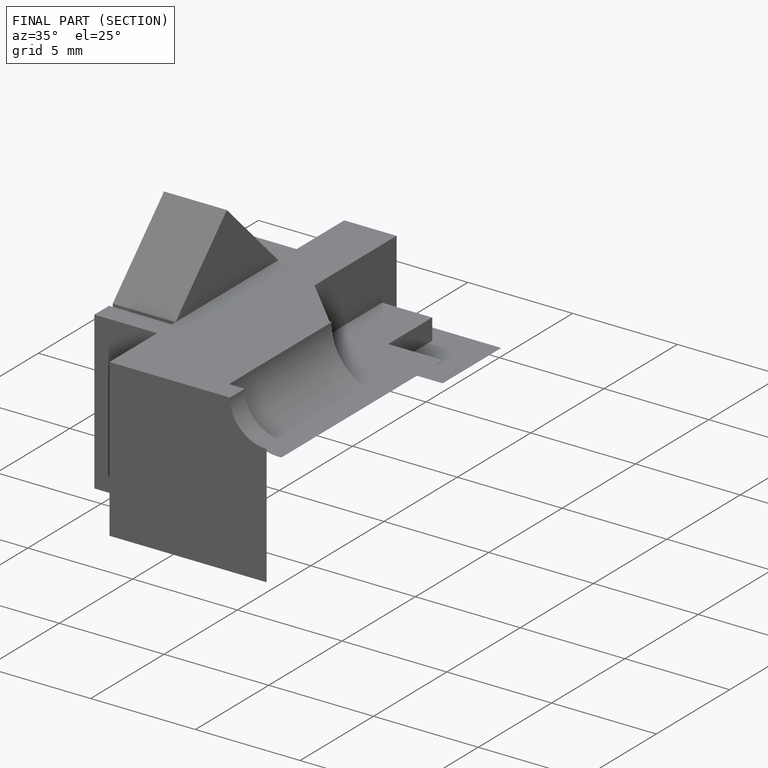
[diagram: finished part — half-section view (interior)]
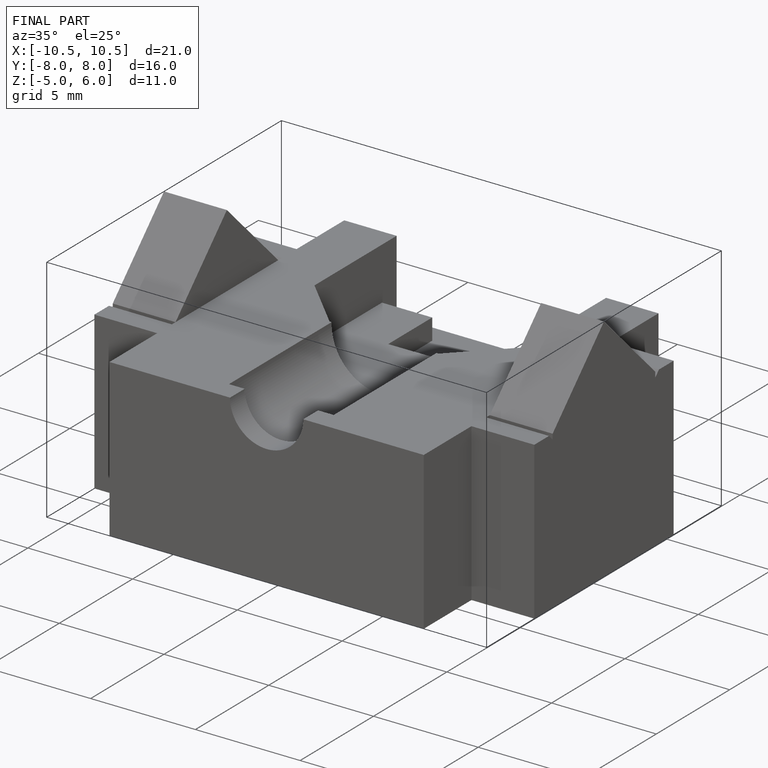
[diagram: finished part — iso view with bounding-box wireframe]
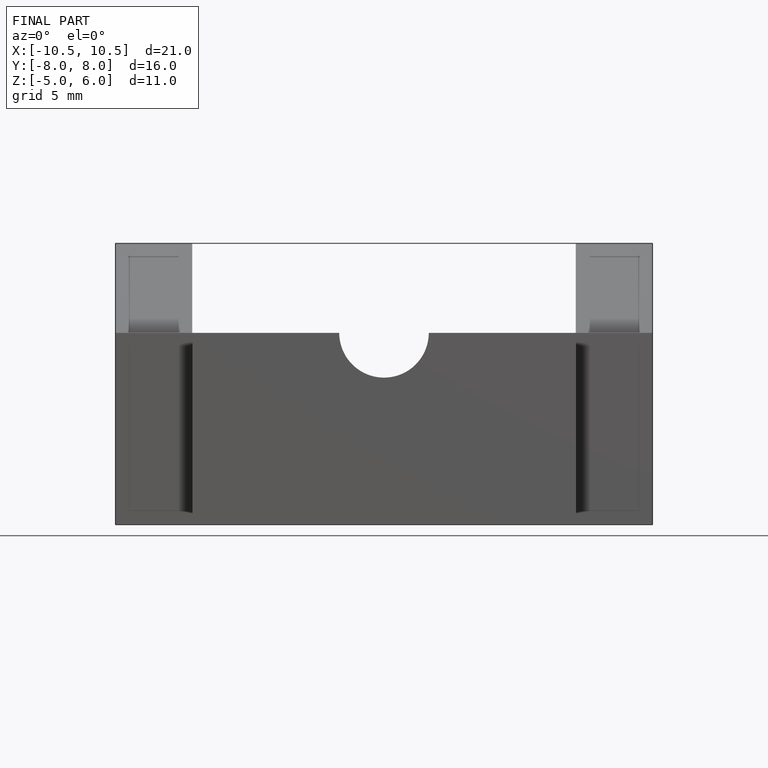
[diagram: finished part — front view with bounding-box wireframe]
